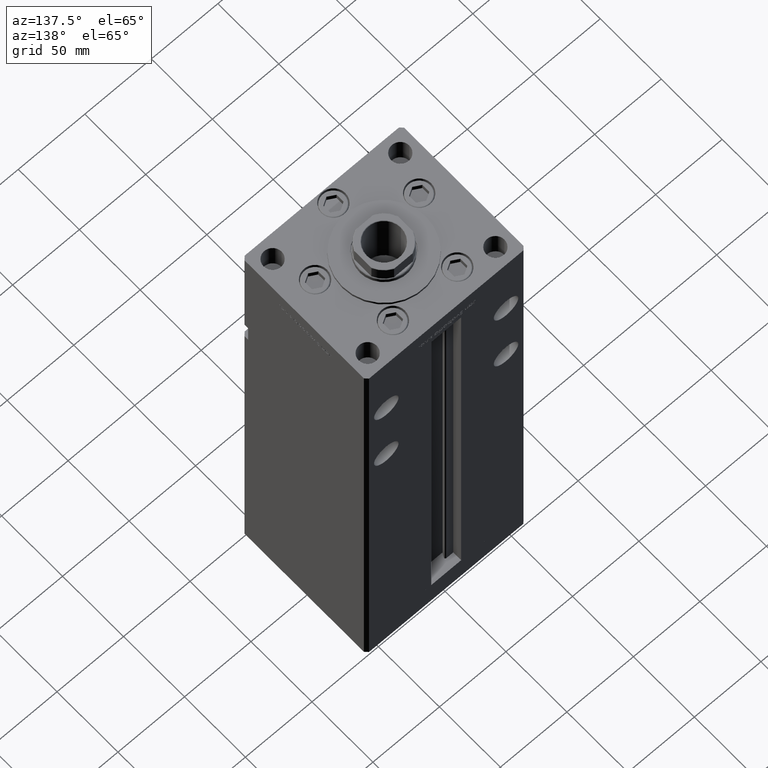
[diagram: clean part render]
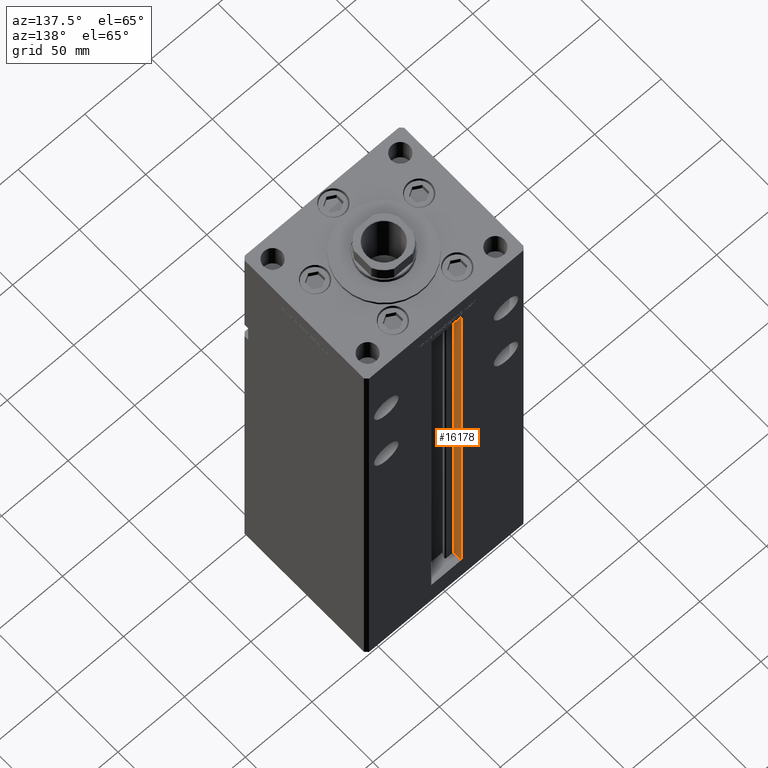
[diagram: same view with one face highlighted and labeled with its STEP entity id]
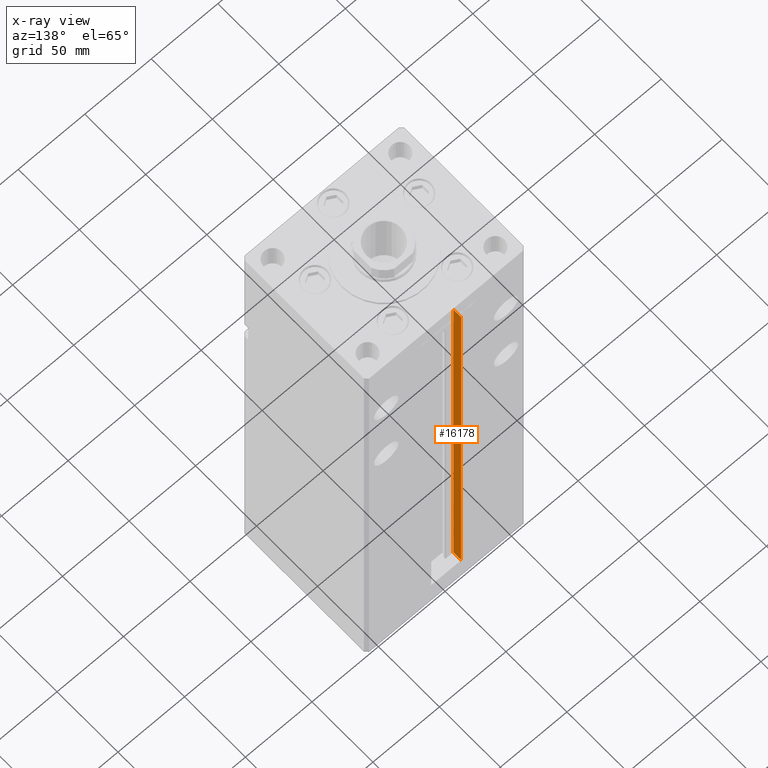
[diagram: x-ray of the same camera — body ghosted, the highlighted face saturated]
A machine part, auxiliary view. The second image highlights one B-rep face of the part: STEP entity #16178.
The next image is the same camera in x-ray: the body ghosted, the highlighted face saturated — about 0% of this face is hidden behind the body in this view.
In plain terms, the highlighted planar face has unit normal (-1, 0, 0).
Its self-contained STEP definition (entity closure, byte-faithful):
#2735 = EDGE_CURVE ( 'NONE', #27956, #3430, #45385, .T. ) ;
#2927 = CARTESIAN_POINT ( 'NONE',  ( -11.24999999999999822, 51.00000000000000711, 318.5000000000000000 ) ) ;
#3430 = VERTEX_POINT ( 'NONE', #7829 ) ;
#3890 = VECTOR ( 'NONE', #41339, 1000.000000000000000 ) ;
#4084 = VERTEX_POINT ( 'NONE', #28265 ) ;
#5364 = LINE ( 'NONE', #25491, #37610 ) ;
#7829 = CARTESIAN_POINT ( 'NONE',  ( -11.24999999999999822, 44.50000000000000711, 0.000000000000000000 ) ) ;
#7901 = ORIENTED_EDGE ( 'NONE', *, *, #41053, .F. ) ;
#8447 = CARTESIAN_POINT ( 'NONE',  ( -11.24999999999999822, 44.50000000000000711, 0.000000000000000000 ) ) ;
#9432 = LINE ( 'NONE', #10751, #12768 ) ;
#10751 = CARTESIAN_POINT ( 'NONE',  ( -11.24999999999999822, 51.00000000000000711, 0.000000000000000000 ) ) ;
#11017 = CARTESIAN_POINT ( 'NONE',  ( -11.24999999999999822, 0.000000000000000000, 318.5000000000000000 ) ) ;
#11272 = ORIENTED_EDGE ( 'NONE', *, *, #32077, .F. ) ;
#11458 = ORIENTED_EDGE ( 'NONE', *, *, #2735, .F. ) ;
#12466 = PLANE ( 'NONE',  #52998 ) ;
#12768 = VECTOR ( 'NONE', #52360, 1000.000000000000000 ) ;
#13488 = EDGE_CURVE ( 'NONE', #27956, #44837, #9432, .T. ) ;
#14649 = ORIENTED_EDGE ( 'NONE', *, *, #13488, .T. ) ;
#15881 = CARTESIAN_POINT ( 'NONE',  ( -11.24999999999999822, 51.00000000000000711, 0.000000000000000000 ) ) ;
#16178 = ADVANCED_FACE ( 'NONE', ( #49240 ), #12466, .F. ) ;
#17307 = DIRECTION ( 'NONE',  ( -1.000000000000000000, 0.000000000000000000, 0.000000000000000000 ) ) ;
#20242 = EDGE_LOOP ( 'NONE', ( #7901, #11458, #14649, #11272 ) ) ;
#21206 = VECTOR ( 'NONE', #31411, 1000.000000000000000 ) ;
#24831 = DIRECTION ( 'NONE',  ( 0.000000000000000000, 0.000000000000000000, 1.000000000000000000 ) ) ;
#25491 = CARTESIAN_POINT ( 'NONE',  ( -11.24999999999999822, 44.50000000000000711, 0.000000000000000000 ) ) ;
#27956 = VERTEX_POINT ( 'NONE', #15881 ) ;
#28265 = CARTESIAN_POINT ( 'NONE',  ( -11.24999999999999822, 44.50000000000000711, 318.5000000000000000 ) ) ;
#28999 = CARTESIAN_POINT ( 'NONE',  ( -11.24999999999999822, 44.50000000000000711, 0.000000000000000000 ) ) ;
#31411 = DIRECTION ( 'NONE',  ( 0.000000000000000000, 1.000000000000000000, 0.000000000000000000 ) ) ;
#32077 = EDGE_CURVE ( 'NONE', #4084, #44837, #39728, .T. ) ;
#37610 = VECTOR ( 'NONE', #41587, 1000.000000000000000 ) ;
#39728 = LINE ( 'NONE', #11017, #21206 ) ;
#41053 = EDGE_CURVE ( 'NONE', #3430, #4084, #5364, .T. ) ;
#41339 = DIRECTION ( 'NONE',  ( -0.000000000000000000, -1.000000000000000000, -0.000000000000000000 ) ) ;
#41587 = DIRECTION ( 'NONE',  ( -0.000000000000000000, -0.000000000000000000, 1.000000000000000000 ) ) ;
#44837 = VERTEX_POINT ( 'NONE', #2927 ) ;
#45385 = LINE ( 'NONE', #28999, #3890 ) ;
#49240 = FACE_OUTER_BOUND ( 'NONE', #20242, .T. ) ;
#52360 = DIRECTION ( 'NONE',  ( -0.000000000000000000, -0.000000000000000000, 1.000000000000000000 ) ) ;
#52998 = AXIS2_PLACEMENT_3D ( 'NONE', #8447, #17307, #24831 ) ;